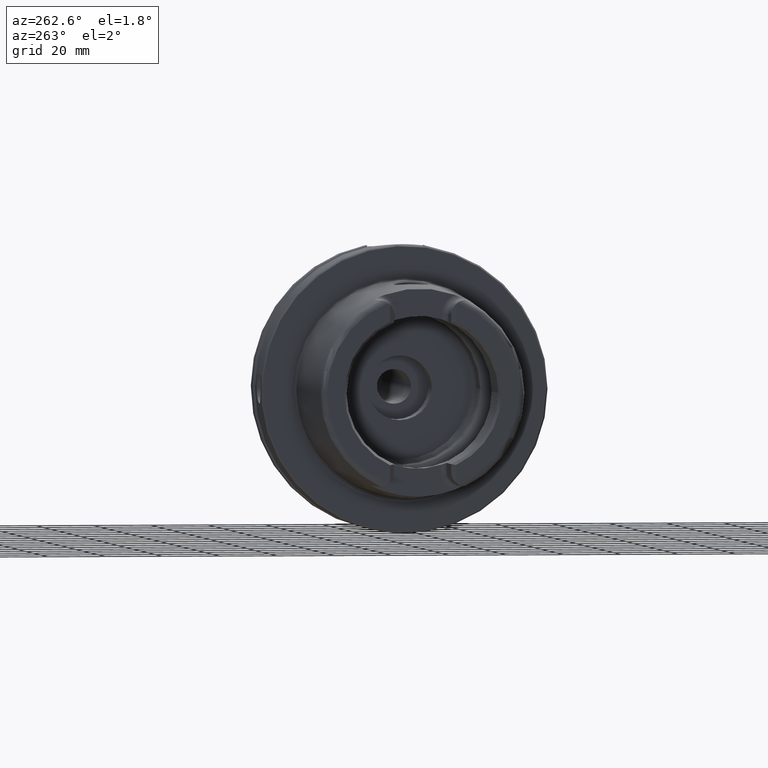
[diagram: clean part render]
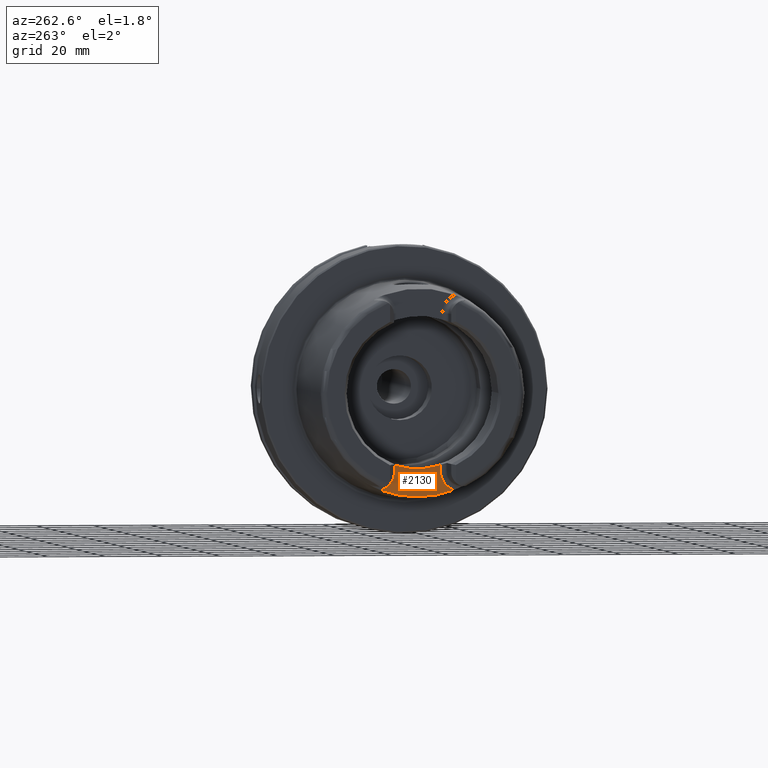
[diagram: same view with one face highlighted and labeled with its STEP entity id]
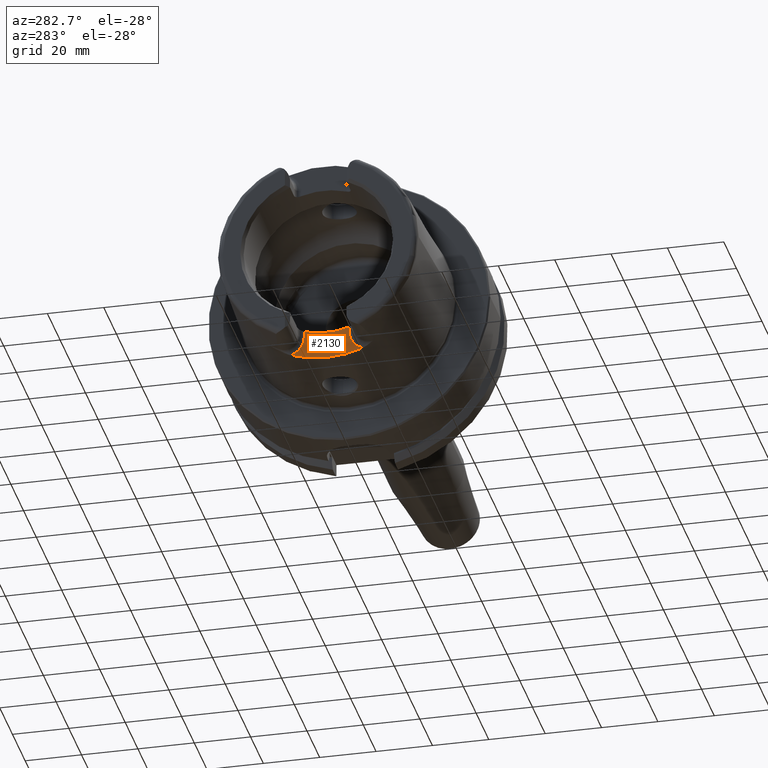
[diagram: same view with one face highlighted and labeled with its STEP entity id]
A machine part, auxiliary view. The second image highlights one B-rep face of the part: STEP entity #2130.
A second angle (auxiliary view) of the same face is appended — the face is thin or edge-on in the first view.
In plain terms, the highlighted planar face has unit normal (-1, 0, 0).
Its self-contained STEP definition (entity closure, byte-faithful):
#126=PLANE('',#2387);
#300=FACE_OUTER_BOUND('',#434,.T.);
#434=EDGE_LOOP('',(#1848,#1849,#1850,#1851,#1852,#1853));
#567=LINE('',#4520,#675);
#570=LINE('',#4532,#678);
#675=VECTOR('',#2941,10.);
#678=VECTOR('',#2956,10.);
#740=CIRCLE('',#2284,36.25399498998);
#791=CIRCLE('',#2381,6.88);
#794=CIRCLE('',#2388,26.5);
#795=CIRCLE('',#2389,6.88);
#918=VERTEX_POINT('',#3596);
#919=VERTEX_POINT('',#3607);
#1020=VERTEX_POINT('',#4504);
#1022=VERTEX_POINT('',#4509);
#1024=VERTEX_POINT('',#4529);
#1025=VERTEX_POINT('',#4531);
#1157=EDGE_CURVE('',#918,#919,#740,.T.);
#1311=EDGE_CURVE('',#1020,#918,#791,.T.);
#1313=EDGE_CURVE('',#1022,#1020,#567,.T.);
#1318=EDGE_CURVE('',#1024,#1022,#794,.T.);
#1319=EDGE_CURVE('',#1025,#1024,#570,.T.);
#1320=EDGE_CURVE('',#919,#1025,#795,.T.);
#1848=ORIENTED_EDGE('',*,*,#1311,.F.);
#1849=ORIENTED_EDGE('',*,*,#1313,.F.);
#1850=ORIENTED_EDGE('',*,*,#1318,.F.);
#1851=ORIENTED_EDGE('',*,*,#1319,.F.);
#1852=ORIENTED_EDGE('',*,*,#1320,.F.);
#1853=ORIENTED_EDGE('',*,*,#1157,.F.);
#2130=ADVANCED_FACE('',(#300),#126,.T.);
#2284=AXIS2_PLACEMENT_3D('',#3608,#2692,#2693);
#2381=AXIS2_PLACEMENT_3D('',#4506,#2937,#2938);
#2387=AXIS2_PLACEMENT_3D('',#4528,#2952,#2953);
#2388=AXIS2_PLACEMENT_3D('',#4530,#2954,#2955);
#2389=AXIS2_PLACEMENT_3D('',#4533,#2957,#2958);
#2692=DIRECTION('center_axis',(1.,0.,0.));
#2693=DIRECTION('ref_axis',(0.,1.,0.));
#2937=DIRECTION('center_axis',(-1.,0.,0.));
#2938=DIRECTION('ref_axis',(0.,0.510937901715381,-0.8596176246394));
#2941=DIRECTION('',(0.,0.,-1.));
#2952=DIRECTION('center_axis',(-1.,0.,0.));
#2953=DIRECTION('ref_axis',(0.,0.,1.));
#2954=DIRECTION('center_axis',(-1.,0.,0.));
#2955=DIRECTION('ref_axis',(0.,1.,0.));
#2956=DIRECTION('',(0.,0.,1.));
#2957=DIRECTION('center_axis',(-1.,0.,0.));
#2958=DIRECTION('ref_axis',(0.,-0.510937901715381,-0.8596176246394));
#3596=CARTESIAN_POINT('',(-35.,-12.7918651267415,-33.9222690767105));
#3607=CARTESIAN_POINT('',(-35.,12.7918651267415,-33.9222690767105));
#3608=CARTESIAN_POINT('Origin',(-35.,0.,0.));
#4504=CARTESIAN_POINT('',(-35.,-8.01,-27.37));
#4506=CARTESIAN_POINT('Origin',(-35.,-14.89,-27.37));
#4509=CARTESIAN_POINT('',(-35.,-8.01,-25.2604414054862));
#4520=CARTESIAN_POINT('',(-35.,-8.01,-28.685));
#4528=CARTESIAN_POINT('Origin',(-35.,8.88178419700125E-15,-30.));
#4529=CARTESIAN_POINT('',(-35.,8.01,-25.2604414054862));
#4530=CARTESIAN_POINT('Origin',(-35.,0.,0.));
#4531=CARTESIAN_POINT('',(-35.,8.01,-27.37));
#4532=CARTESIAN_POINT('',(-35.,8.01,-25.));
#4533=CARTESIAN_POINT('Origin',(-35.,14.89,-27.37));